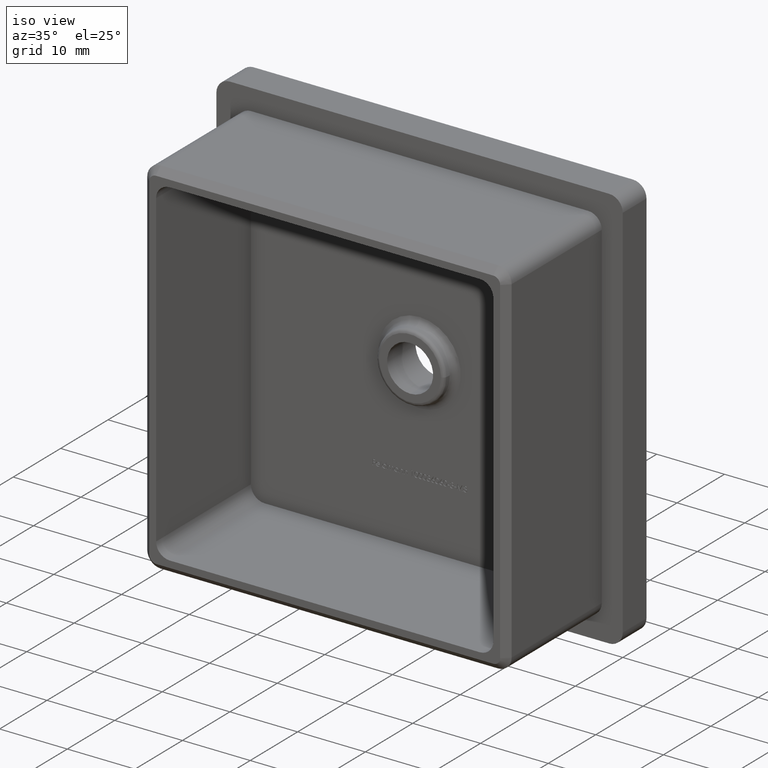
[diagram: clean part render]
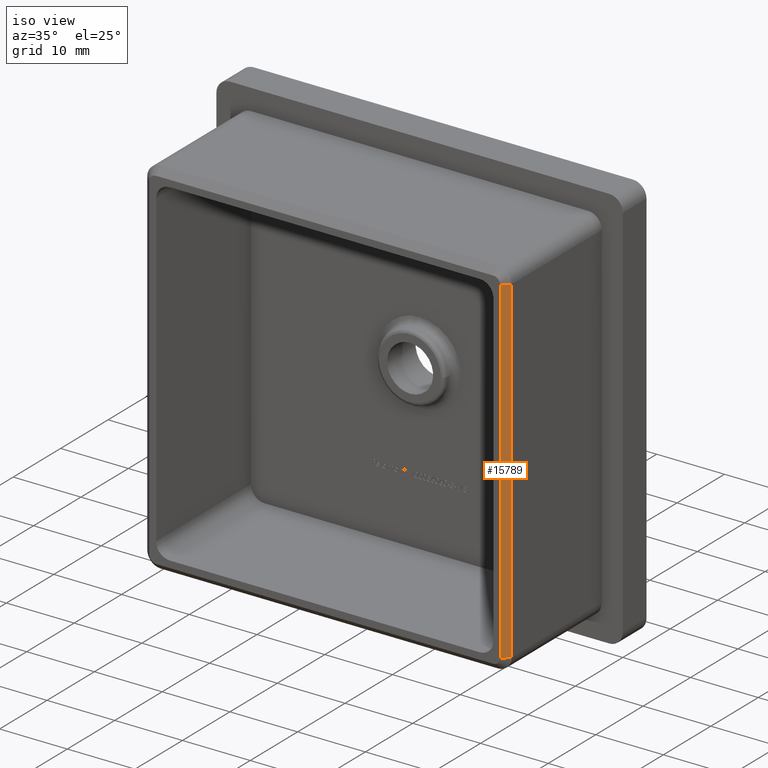
[diagram: same view with one face highlighted and labeled with its STEP entity id]
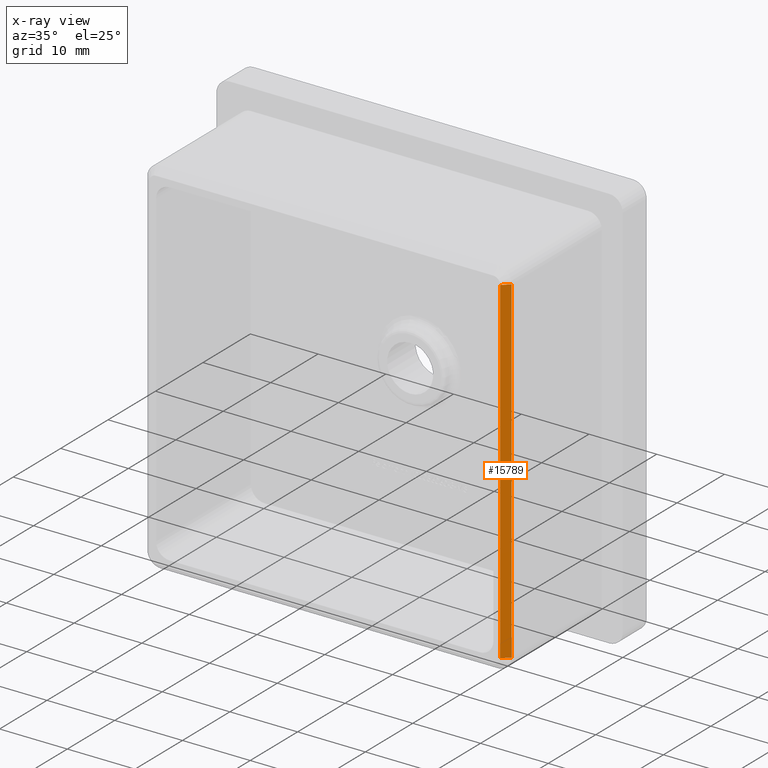
[diagram: x-ray of the same camera — body ghosted, the highlighted face saturated]
A machine part, iso view. The second image highlights one B-rep face of the part: STEP entity #15789.
The next image is the same camera in x-ray: the body ghosted, the highlighted face saturated — about 0% of this face is hidden behind the body in this view.
In plain terms, the highlighted planar face has unit normal (0.7071, -0.7071, 0).
Its self-contained STEP definition (entity closure, byte-faithful):
#624 = VERTEX_POINT ( 'NONE', #16076 ) ;
#1100 = CARTESIAN_POINT ( 'NONE',  ( 26.89999999999999900, -19.00000000000000000, -24.89999999999999900 ) ) ;
#1872 = EDGE_CURVE ( 'NONE', #624, #15557, #15513, .T. ) ;
#2890 = VERTEX_POINT ( 'NONE', #1100 ) ;
#2946 = CARTESIAN_POINT ( 'NONE',  ( 25.89999999999999500, -20.00000000000000000, -24.89999999999999900 ) ) ;
#3895 = DIRECTION ( 'NONE',  ( 0.0000000000000000000, 0.0000000000000000000, 1.000000000000000000 ) ) ;
#4234 = VECTOR ( 'NONE', #8917, 1000.000000000000100 ) ;
#4812 = LINE ( 'NONE', #2946, #12684 ) ;
#5127 = VERTEX_POINT ( 'NONE', #18180 ) ;
#5521 = CARTESIAN_POINT ( 'NONE',  ( 25.89999999999999500, -20.00000000000000000, 24.89999999999999900 ) ) ;
#5826 = EDGE_CURVE ( 'NONE', #5127, #2890, #17270, .T. ) ;
#6131 = ORIENTED_EDGE ( 'NONE', *, *, #10677, .T. ) ;
#6161 = ORIENTED_EDGE ( 'NONE', *, *, #5826, .F. ) ;
#6486 = CARTESIAN_POINT ( 'NONE',  ( 26.89999999999999900, -19.00000000000000000, -24.89999999999998400 ) ) ;
#6563 = DIRECTION ( 'NONE',  ( 0.7071067811865475700, -0.7071067811865475700, 0.0000000000000000000 ) ) ;
#7228 = LINE ( 'NONE', #11955, #4234 ) ;
#7670 = FACE_OUTER_BOUND ( 'NONE', #18409, .T. ) ;
#7889 = CARTESIAN_POINT ( 'NONE',  ( 25.89999999999999500, -20.00000000000000000, 24.89999999999999900 ) ) ;
#8917 = DIRECTION ( 'NONE',  ( -0.7071067811865474600, -0.7071067811865474600, 0.0000000000000000000 ) ) ;
#9457 = ORIENTED_EDGE ( 'NONE', *, *, #1872, .F. ) ;
#10677 = EDGE_CURVE ( 'NONE', #624, #2890, #4812, .T. ) ;
#11506 = CARTESIAN_POINT ( 'NONE',  ( 25.89999999999999500, -20.00000000000000000, 0.0000000000000000000 ) ) ;
#11955 = CARTESIAN_POINT ( 'NONE',  ( 26.89999999999999900, -19.00000000000000000, 24.89999999999999900 ) ) ;
#12133 = ORIENTED_EDGE ( 'NONE', *, *, #14676, .T. ) ;
#12684 = VECTOR ( 'NONE', #16175, 1000.000000000000100 ) ;
#13338 = VECTOR ( 'NONE', #15218, 1000.000000000000000 ) ;
#14676 = EDGE_CURVE ( 'NONE', #5127, #15557, #7228, .T. ) ;
#15218 = DIRECTION ( 'NONE',  ( 0.0000000000000000000, 0.0000000000000000000, -1.000000000000000000 ) ) ;
#15236 = AXIS2_PLACEMENT_3D ( 'NONE', #11506, #6563, #16906 ) ;
#15513 = LINE ( 'NONE', #5521, #18770 ) ;
#15557 = VERTEX_POINT ( 'NONE', #7889 ) ;
#15789 = ADVANCED_FACE ( 'NONE', ( #7670 ), #17247, .T. ) ;
#16076 = CARTESIAN_POINT ( 'NONE',  ( 25.89999999999999500, -20.00000000000000000, -24.89999999999999900 ) ) ;
#16175 = DIRECTION ( 'NONE',  ( 0.7071067811865474600, 0.7071067811865474600, 0.0000000000000000000 ) ) ;
#16906 = DIRECTION ( 'NONE',  ( 0.0000000000000000000, 0.0000000000000000000, -1.000000000000000000 ) ) ;
#17247 = PLANE ( 'NONE',  #15236 ) ;
#17270 = LINE ( 'NONE', #6486, #13338 ) ;
#18180 = CARTESIAN_POINT ( 'NONE',  ( 26.89999999999999900, -19.00000000000000000, 24.89999999999999900 ) ) ;
#18409 = EDGE_LOOP ( 'NONE', ( #6131, #6161, #12133, #9457 ) ) ;
#18770 = VECTOR ( 'NONE', #3895, 1000.000000000000000 ) ;